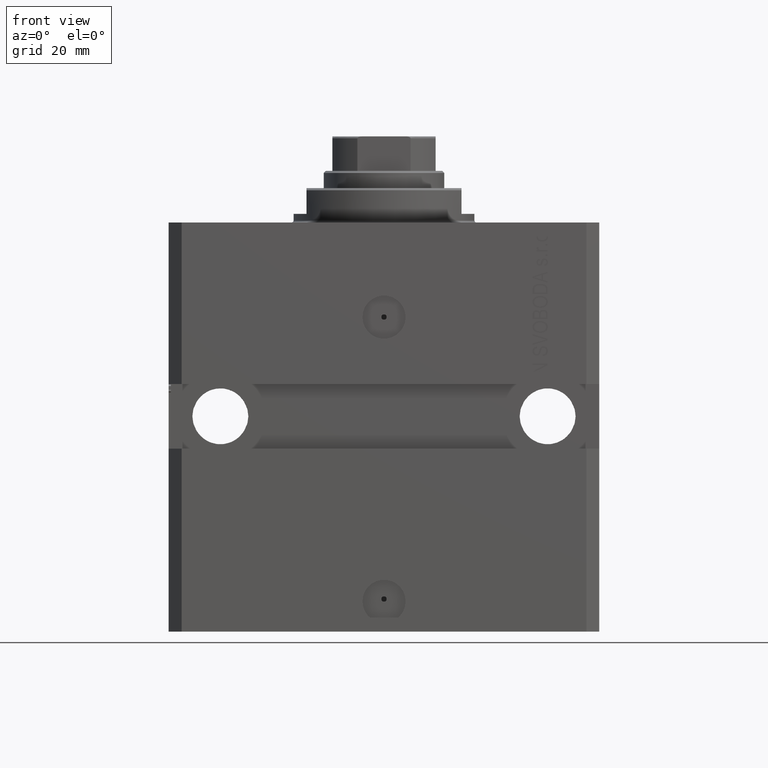
[diagram: clean part render]
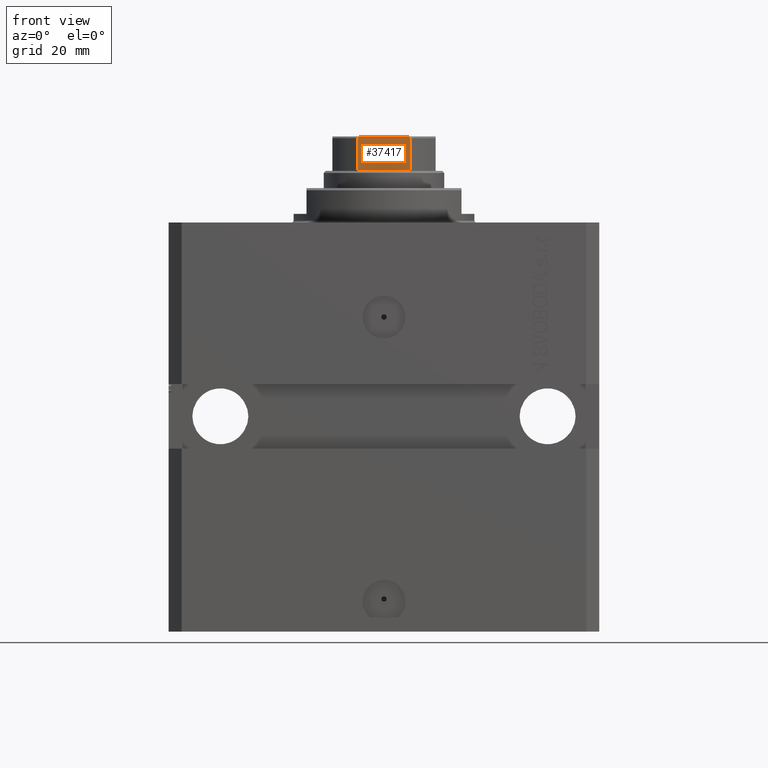
[diagram: same view with one face highlighted and labeled with its STEP entity id]
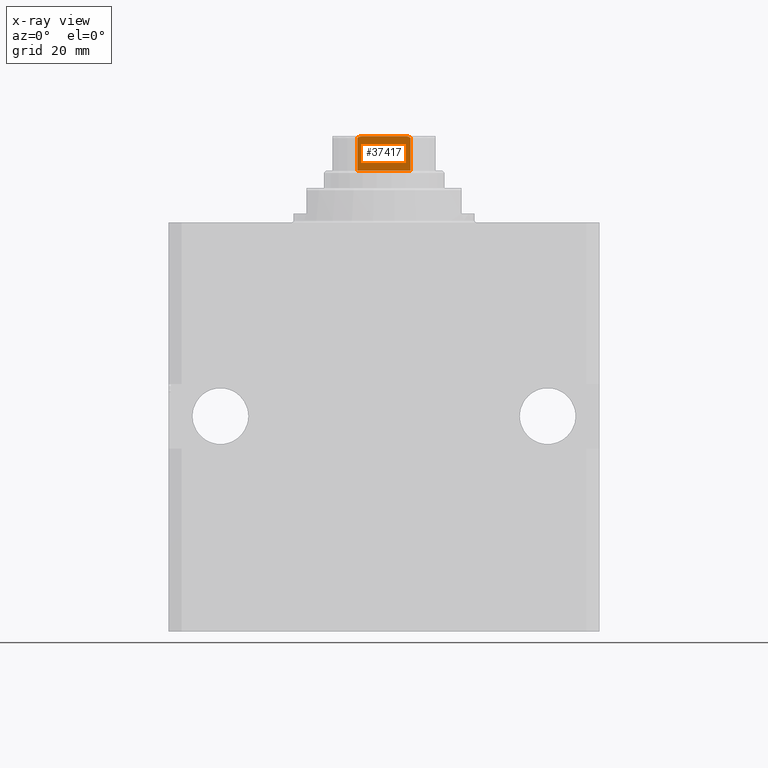
[diagram: x-ray of the same camera — body ghosted, the highlighted face saturated]
A machine part, front view. The second image highlights one B-rep face of the part: STEP entity #37417.
The next image is the same camera in x-ray: the body ghosted, the highlighted face saturated — about 0% of this face is hidden behind the body in this view.
In plain terms, the highlighted planar face has unit normal (-0, 1, 0).
Its self-contained STEP definition (entity closure, byte-faithful):
#270 = CARTESIAN_POINT ( 'NONE',  ( 6.184658438426490434, -12.00000000000000000, 95.10000000000006537 ) ) ;
#1343 = LINE ( 'NONE', #11562, #4305 ) ;
#1766 = VERTEX_POINT ( 'NONE', #32093 ) ;
#1840 = EDGE_CURVE ( 'NONE', #20683, #4438, #6171, .T. ) ;
#1893 = CARTESIAN_POINT ( 'NONE',  ( -4.999999999999992895, -12.00000000000000178, 103.0999999999999943 ) ) ;
#2318 = LINE ( 'NONE', #20238, #12851 ) ;
#2394 = CARTESIAN_POINT ( 'NONE',  ( -5.793822051191352074, -12.00000000000000000, 102.9841735219943217 ) ) ;
#3865 = ORIENTED_EDGE ( 'NONE', *, *, #1840, .T. ) ;
#4305 = VECTOR ( 'NONE', #22240, 1000.000000000000000 ) ;
#4438 = VERTEX_POINT ( 'NONE', #4443 ) ;
#4443 = CARTESIAN_POINT ( 'NONE',  ( 6.184658438426490434, -12.00000000000000000, 102.5999999999999943 ) ) ;
#4823 = VERTEX_POINT ( 'NONE', #1893 ) ;
#5380 = EDGE_CURVE ( 'NONE', #4438, #39824, #42677, .T. ) ;
#5941 = DIRECTION ( 'NONE',  ( -0.000000000000000000, -0.000000000000000000, 1.000000000000000000 ) ) ;
#6171 = LINE ( 'NONE', #9802, #27598 ) ;
#6234 = CARTESIAN_POINT ( 'NONE',  ( 6.161088279078729357, -12.00000000000000000, 102.7146234191509961 ) ) ;
#7642 = VERTEX_POINT ( 'NONE', #11940 ) ;
#8196 = B_SPLINE_CURVE_WITH_KNOTS ( 'NONE', 3,
 ( #18997, #22846, #9201, #2394, #36904, #15585, #12178, #23061, #36474, #22624 ),
 .UNSPECIFIED., .F., .F.,
 ( 4, 2, 2, 2, 4 ),
 ( 0.000000000000000000, 0.0006877128613558533337, 0.001031569292033773007, 0.001203497507372734091, 0.001375425722711694958 ),
 .UNSPECIFIED. ) ;
#9192 = CARTESIAN_POINT ( 'NONE',  ( 5.792513940493502211, -12.00000000000000178, 102.9846382036009516 ) ) ;
#9201 = CARTESIAN_POINT ( 'NONE',  ( -5.459934723612532181, -12.00000000000000000, 103.0794964115812178 ) ) ;
#9484 = CARTESIAN_POINT ( 'NONE',  ( 4.999999999999993783, -12.00000000000000178, 103.0999999999999943 ) ) ;
#9760 = EDGE_CURVE ( 'NONE', #1766, #20683, #13697, .T. ) ;
#9802 = CARTESIAN_POINT ( 'NONE',  ( 6.184658438426490434, -12.00000000000000000, -0.001000000000001000089 ) ) ;
#11562 = CARTESIAN_POINT ( 'NONE',  ( -11.99999999999999645, -12.00000000000000178, 103.0999999999999943 ) ) ;
#11940 = CARTESIAN_POINT ( 'NONE',  ( -6.184658438426490434, -12.00000000000000000, 102.5999999999999943 ) ) ;
#12178 = CARTESIAN_POINT ( 'NONE',  ( -6.091027642353957106, -12.00000000000000178, 102.8080088155617204 ) ) ;
#12235 = FACE_OUTER_BOUND ( 'NONE', #22239, .T. ) ;
#12851 = VECTOR ( 'NONE', #5941, 1000.000000000000000 ) ;
#12989 = EDGE_CURVE ( 'NONE', #4823, #7642, #8196, .T. ) ;
#13697 = LINE ( 'NONE', #24572, #27846 ) ;
#15585 = CARTESIAN_POINT ( 'NONE',  ( -6.045866546018587862, -12.00000000000000000, 102.8461068616299343 ) ) ;
#15940 = ORIENTED_EDGE ( 'NONE', *, *, #12989, .T. ) ;
#16240 = CARTESIAN_POINT ( 'NONE',  ( 4.999999999999993783, -12.00000000000000178, 103.0999999999999943 ) ) ;
#17322 = DIRECTION ( 'NONE',  ( 1.000000000000000000, 7.228014483236695816E-17, 0.000000000000000000 ) ) ;
#18997 = CARTESIAN_POINT ( 'NONE',  ( -4.999999999999992895, -12.00000000000000178, 103.0999999999999943 ) ) ;
#19272 = DIRECTION ( 'NONE',  ( -7.228014483236695816E-17, 1.000000000000000000, 0.000000000000000000 ) ) ;
#19632 = CARTESIAN_POINT ( 'NONE',  ( 6.184658438426490434, -12.00000000000000000, 102.5999999999999943 ) ) ;
#20238 = CARTESIAN_POINT ( 'NONE',  ( -6.184658438426490434, -12.00000000000000000, -0.001000000000001000089 ) ) ;
#20683 = VERTEX_POINT ( 'NONE', #270 ) ;
#22239 = EDGE_LOOP ( 'NONE', ( #44528, #15940, #41780, #27329, #3865, #44112 ) ) ;
#22240 = DIRECTION ( 'NONE',  ( 1.000000000000000000, 7.228014483236695816E-17, 0.000000000000000000 ) ) ;
#22624 = CARTESIAN_POINT ( 'NONE',  ( -6.184658438426490434, -12.00000000000000000, 102.5999999999999943 ) ) ;
#22846 = CARTESIAN_POINT ( 'NONE',  ( -5.230809753656814998, -12.00000000000000533, 103.1000000000000369 ) ) ;
#23050 = CARTESIAN_POINT ( 'NONE',  ( 6.184658438426491323, -12.00000000000000355, 102.6589344020394066 ) ) ;
#23061 = CARTESIAN_POINT ( 'NONE',  ( -6.160856115322534521, -12.00000000000000355, 102.7149782197478629 ) ) ;
#24572 = CARTESIAN_POINT ( 'NONE',  ( -11.99999999999999645, -12.00000000000000178, 95.09999999999999432 ) ) ;
#26090 = PLANE ( 'NONE',  #31150 ) ;
#26952 = EDGE_CURVE ( 'NONE', #1766, #7642, #2318, .T. ) ;
#27329 = ORIENTED_EDGE ( 'NONE', *, *, #9760, .T. ) ;
#27598 = VECTOR ( 'NONE', #29810, 1000.000000000000000 ) ;
#27846 = VECTOR ( 'NONE', #17322, 1000.000000000000000 ) ;
#29810 = DIRECTION ( 'NONE',  ( -0.000000000000000000, -0.000000000000000000, 1.000000000000000000 ) ) ;
#30760 = CARTESIAN_POINT ( 'NONE',  ( 6.046414714222229314, -11.99999999999999822, 102.8457872300292877 ) ) ;
#31150 = AXIS2_PLACEMENT_3D ( 'NONE', #36527, #19272, #33121 ) ;
#32093 = CARTESIAN_POINT ( 'NONE',  ( -6.184658438426490434, -12.00000000000000000, 95.10000000000006537 ) ) ;
#33121 = DIRECTION ( 'NONE',  ( -1.000000000000000000, -7.228014483236695816E-17, 0.000000000000000000 ) ) ;
#34157 = CARTESIAN_POINT ( 'NONE',  ( 6.091003570118822097, -11.99999999999999822, 102.8080862465980942 ) ) ;
#36474 = CARTESIAN_POINT ( 'NONE',  ( -6.184658438426487770, -12.00000000000000000, 102.6589821493407158 ) ) ;
#36527 = CARTESIAN_POINT ( 'NONE',  ( -11.99999999999999645, -12.00000000000000178, 103.0999999999999943 ) ) ;
#36896 = CARTESIAN_POINT ( 'NONE',  ( 5.458892612163318780, -11.99999999999999822, 103.0796099716497736 ) ) ;
#36904 = CARTESIAN_POINT ( 'NONE',  ( -5.903192932991092157, -12.00000000000000355, 102.9415152347680191 ) ) ;
#37417 = ADVANCED_FACE ( 'NONE', ( #12235 ), #26090, .F. ) ;
#38054 = EDGE_CURVE ( 'NONE', #4823, #39824, #1343, .T. ) ;
#39824 = VERTEX_POINT ( 'NONE', #9484 ) ;
#40314 = CARTESIAN_POINT ( 'NONE',  ( 5.900889097622412649, -12.00000000000000178, 102.9429613869933036 ) ) ;
#41780 = ORIENTED_EDGE ( 'NONE', *, *, #26952, .F. ) ;
#42677 = B_SPLINE_CURVE_WITH_KNOTS ( 'NONE', 3,
 ( #19632, #23050, #6234, #34157, #30760, #40314, #9192, #36896, #43937, #16240 ),
 .UNSPECIFIED., .F., .F.,
 ( 4, 2, 2, 2, 4 ),
 ( 0.000000000000000000, 0.0001740189231935439771, 0.0003480378463870879542, 0.0006960756927741780769, 0.001392151385548346830 ),
 .UNSPECIFIED. ) ;
#43937 = CARTESIAN_POINT ( 'NONE',  ( 5.230795946637837979, -12.00000000000000178, 103.0999999999999943 ) ) ;
#44112 = ORIENTED_EDGE ( 'NONE', *, *, #5380, .T. ) ;
#44528 = ORIENTED_EDGE ( 'NONE', *, *, #38054, .F. ) ;